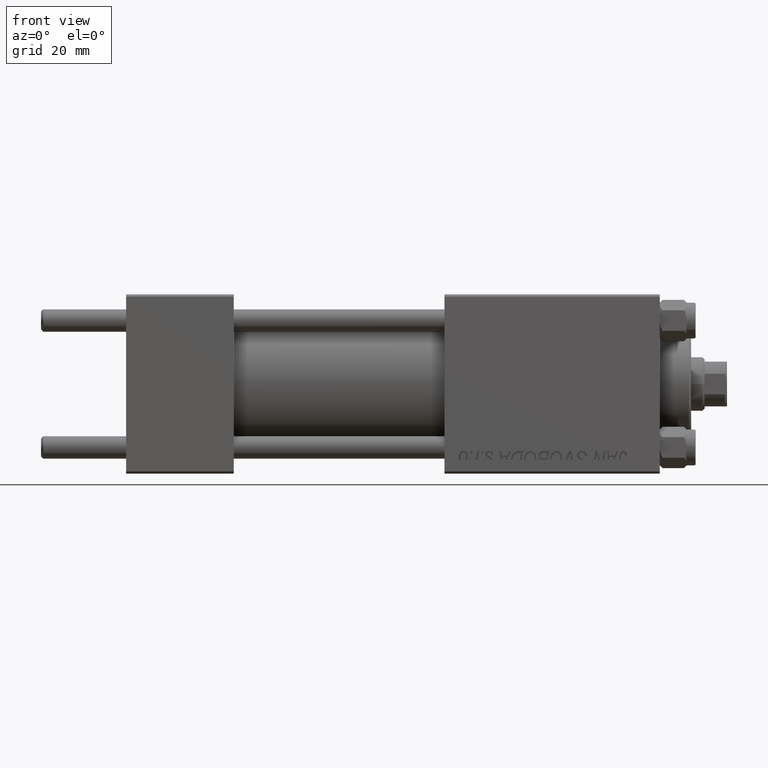
[diagram: clean part render]
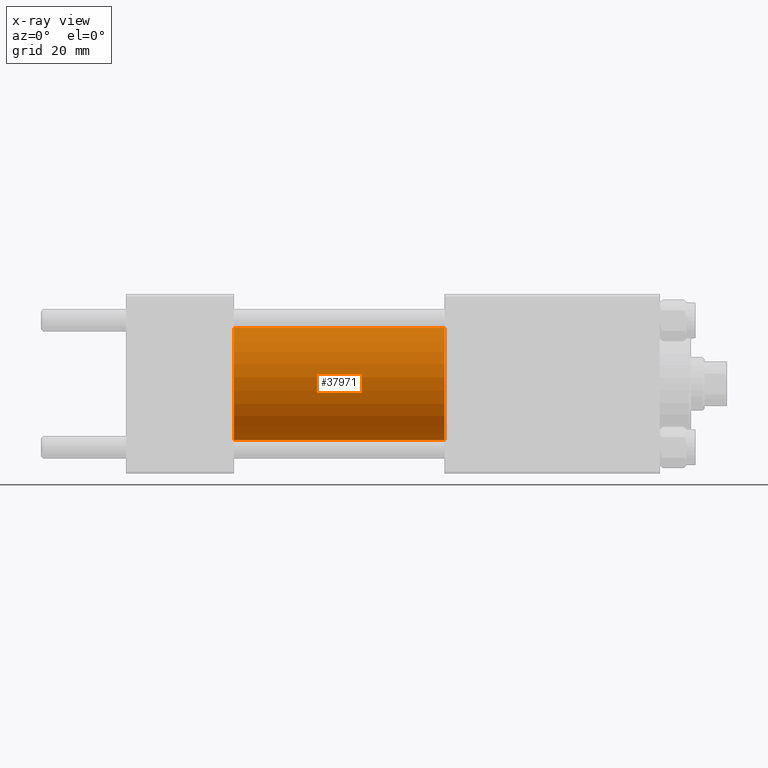
[diagram: x-ray — body ghosted, one internal face saturated and labeled with its STEP entity id]
A machine part, front view, then the same camera in x-ray: the body is ghosted and one INTERNAL B-rep face — a face not visible from any outside direction — is saturated and labeled: STEP entity #37971.
In plain terms, the highlighted cylindrical surface (partial cylindrical patch) has radius 12.5 mm, axis along (-1, -0, -0).
Its self-contained STEP definition (entity closure, byte-faithful):
#708 = CARTESIAN_POINT ( 'NONE',  ( 71.00000000000001421, 0.000000000000000000, 0.000000000000000000 ) ) ;
#736 = DIRECTION ( 'NONE',  ( -1.000000000000000000, -0.000000000000000000, -0.000000000000000000 ) ) ;
#1870 = VERTEX_POINT ( 'NONE', #8969 ) ;
#2906 = VERTEX_POINT ( 'NONE', #14688 ) ;
#5126 = EDGE_CURVE ( 'NONE', #48761, #2906, #49588, .T. ) ;
#5651 = DIRECTION ( 'NONE',  ( 1.000000000000000000, 0.000000000000000000, 0.000000000000000000 ) ) ;
#6082 = CARTESIAN_POINT ( 'NONE',  ( 71.00000000000001421, 1.530808498934191127E-15, -12.49999999999999645 ) ) ;
#6439 = VECTOR ( 'NONE', #25465, 1000.000000000000000 ) ;
#7359 = CARTESIAN_POINT ( 'NONE',  ( 71.00000000000001421, 0.000000000000000000, 0.000000000000000000 ) ) ;
#8969 = CARTESIAN_POINT ( 'NONE',  ( 24.00000000000000000, 1.530808498934191127E-15, -12.49999999999999645 ) ) ;
#11906 = CIRCLE ( 'NONE', #34408, 12.49999999999999645 ) ;
#12524 = DIRECTION ( 'NONE',  ( -1.000000000000000000, -0.000000000000000000, -0.000000000000000000 ) ) ;
#12602 = EDGE_CURVE ( 'NONE', #48761, #17143, #11906, .T. ) ;
#13017 = DIRECTION ( 'NONE',  ( 0.000000000000000000, 0.000000000000000000, 1.000000000000000000 ) ) ;
#14549 = CARTESIAN_POINT ( 'NONE',  ( 71.00000000000001421, 0.000000000000000000, 12.49999999999999645 ) ) ;
#14688 = CARTESIAN_POINT ( 'NONE',  ( 24.00000000000000000, 0.000000000000000000, 12.49999999999999645 ) ) ;
#16311 = FACE_OUTER_BOUND ( 'NONE', #34585, .T. ) ;
#17117 = EDGE_CURVE ( 'NONE', #17143, #1870, #17677, .T. ) ;
#17143 = VERTEX_POINT ( 'NONE', #6082 ) ;
#17677 = LINE ( 'NONE', #33512, #6439 ) ;
#18910 = DIRECTION ( 'NONE',  ( 0.000000000000000000, 0.000000000000000000, -1.000000000000000000 ) ) ;
#19141 = AXIS2_PLACEMENT_3D ( 'NONE', #48879, #5651, #18910 ) ;
#20305 = EDGE_CURVE ( 'NONE', #2906, #1870, #40851, .T. ) ;
#21126 = ORIENTED_EDGE ( 'NONE', *, *, #20305, .F. ) ;
#25465 = DIRECTION ( 'NONE',  ( -1.000000000000000000, -0.000000000000000000, -0.000000000000000000 ) ) ;
#31006 = DIRECTION ( 'NONE',  ( 1.000000000000000000, 0.000000000000000000, 0.000000000000000000 ) ) ;
#31630 = AXIS2_PLACEMENT_3D ( 'NONE', #708, #12524, #13017 ) ;
#32153 = CYLINDRICAL_SURFACE ( 'NONE', #31630, 12.49999999999999645 ) ;
#33512 = CARTESIAN_POINT ( 'NONE',  ( 71.00000000000001421, 1.530808498934191127E-15, -12.49999999999999645 ) ) ;
#34285 = DIRECTION ( 'NONE',  ( 0.000000000000000000, 0.000000000000000000, -1.000000000000000000 ) ) ;
#34408 = AXIS2_PLACEMENT_3D ( 'NONE', #7359, #31006, #34285 ) ;
#34585 = EDGE_LOOP ( 'NONE', ( #47020, #45025, #21126, #38331 ) ) ;
#35222 = CARTESIAN_POINT ( 'NONE',  ( 71.00000000000001421, 0.000000000000000000, 12.49999999999999645 ) ) ;
#37971 = ADVANCED_FACE ( 'NONE', ( #16311 ), #32153, .F. ) ;
#38331 = ORIENTED_EDGE ( 'NONE', *, *, #5126, .F. ) ;
#40851 = CIRCLE ( 'NONE', #19141, 12.49999999999999645 ) ;
#45025 = ORIENTED_EDGE ( 'NONE', *, *, #17117, .T. ) ;
#47020 = ORIENTED_EDGE ( 'NONE', *, *, #12602, .T. ) ;
#47858 = VECTOR ( 'NONE', #736, 1000.000000000000000 ) ;
#48761 = VERTEX_POINT ( 'NONE', #14549 ) ;
#48879 = CARTESIAN_POINT ( 'NONE',  ( 24.00000000000000000, 0.000000000000000000, 0.000000000000000000 ) ) ;
#49588 = LINE ( 'NONE', #35222, #47858 ) ;